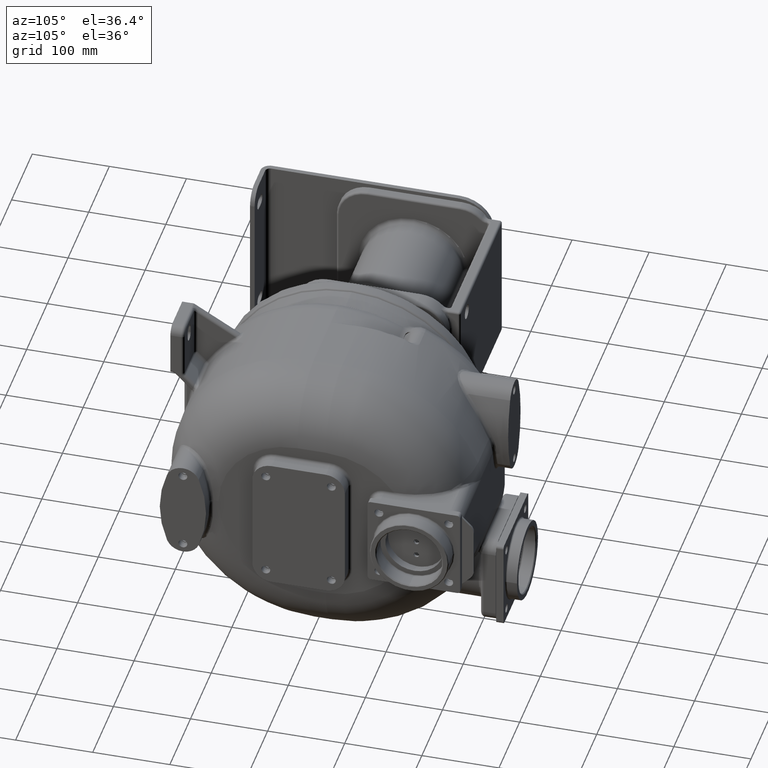
[diagram: clean part render]
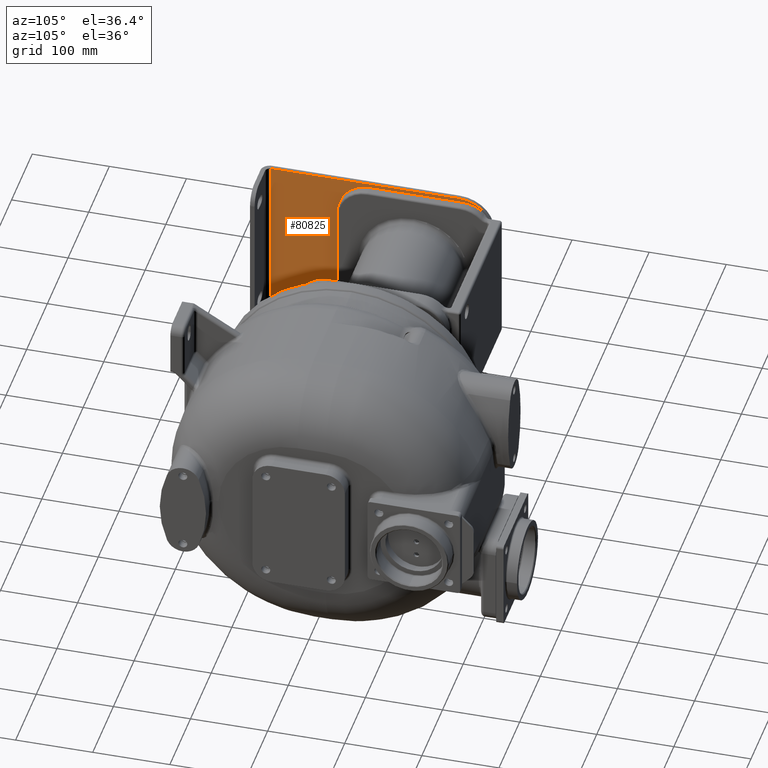
[diagram: same view with one face highlighted and labeled with its STEP entity id]
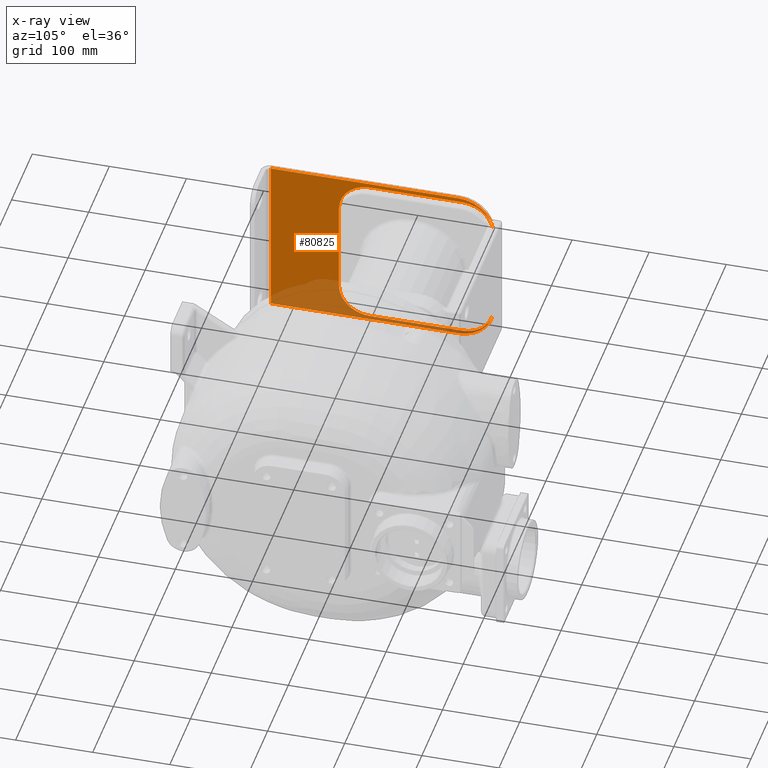
[diagram: x-ray of the same camera — body ghosted, the highlighted face saturated]
A machine part, auxiliary view. The second image highlights one B-rep face of the part: STEP entity #80825.
The next image is the same camera in x-ray: the body ghosted, the highlighted face saturated — about 22% of this face is hidden behind the body in this view.
In plain terms, the highlighted planar face has unit normal (1, 0, 0).
Its self-contained STEP definition (entity closure, byte-faithful):
#27076=CARTESIAN_POINT('',(-4.185E2,2.6E2,6.E1));
#27077=DIRECTION('',(-1.E0,0.E0,0.E0));
#27078=DIRECTION('',(0.E0,0.E0,1.E0));
#27079=AXIS2_PLACEMENT_3D('',#27076,#27077,#27078);
#27095=CARTESIAN_POINT('',(-4.185E2,2.55E2,-6.E1));
#27096=DIRECTION('',(1.E0,0.E0,0.E0));
#27097=DIRECTION('',(0.E0,0.E0,-1.E0));
#27098=AXIS2_PLACEMENT_3D('',#27095,#27096,#27097);
#27100=DIRECTION('',(0.E0,1.E0,0.E0));
#27101=VECTOR('',#27100,2.43E2);
#27102=CARTESIAN_POINT('',(-4.185E2,1.2E1,-1.05E2));
#27103=LINE('',#27102,#27101);
#27104=DIRECTION('',(0.E0,-1.E0,0.E0));
#27105=VECTOR('',#27104,2.43E2);
#27106=CARTESIAN_POINT('',(-4.185E2,2.55E2,1.05E2));
#27107=LINE('',#27106,#27105);
#27108=CARTESIAN_POINT('',(-4.185E2,2.55E2,6.E1));
#27109=DIRECTION('',(1.E0,0.E0,0.E0));
#27110=DIRECTION('',(0.E0,1.E0,2.660587799457E-12));
#27111=AXIS2_PLACEMENT_3D('',#27108,#27109,#27110);
#27113=CARTESIAN_POINT('',(-4.185E2,1.4E2,6.E1));
#27114=DIRECTION('',(-1.E0,0.E0,0.E0));
#27115=DIRECTION('',(0.E0,-1.E0,2.966515921798E-14));
#27116=AXIS2_PLACEMENT_3D('',#27113,#27114,#27115);
#27127=DIRECTION('',(0.E0,1.E0,0.E0));
#27128=VECTOR('',#27127,1.2E2);
#27129=CARTESIAN_POINT('',(-4.185E2,1.4E2,1.E2));
#27130=LINE('',#27129,#27128);
#27960=DIRECTION('',(0.E0,0.E0,1.E0));
#27961=VECTOR('',#27960,2.1E2);
#27962=CARTESIAN_POINT('',(-4.185E2,1.2E1,-1.05E2));
#27963=LINE('',#27962,#27961);
#28809=CARTESIAN_POINT('',(-4.185E2,2.6E2,-6.E1));
#28810=DIRECTION('',(-1.E0,0.E0,0.E0));
#28811=DIRECTION('',(0.E0,1.E0,-3.981170948464E-12));
#28812=AXIS2_PLACEMENT_3D('',#28809,#28810,#28811);
#28828=DIRECTION('',(0.E0,-1.E0,0.E0));
#28829=VECTOR('',#28828,1.2E2);
#28830=CARTESIAN_POINT('',(-4.185E2,2.6E2,-1.E2));
#28831=LINE('',#28830,#28829);
#28840=CARTESIAN_POINT('',(-4.185E2,1.4E2,-6.E1));
#28841=DIRECTION('',(-1.E0,0.E0,0.E0));
#28842=DIRECTION('',(0.E0,2.842170943040E-14,-1.E0));
#28843=AXIS2_PLACEMENT_3D('',#28840,#28841,#28842);
#28854=DIRECTION('',(0.E0,0.E0,1.E0));
#28855=VECTOR('',#28854,1.2E2);
#28856=CARTESIAN_POINT('',(-4.185E2,1.E2,-6.E1));
#28857=LINE('',#28856,#28855);
#42358=CARTESIAN_POINT('',(-4.185E2,2.55E2,-1.05E2));
#42360=VERTEX_POINT('',#42358);
#42380=CARTESIAN_POINT('',(-4.185E2,1.2E1,-1.05E2));
#42381=VERTEX_POINT('',#42380);
#42382=CARTESIAN_POINT('',(-4.185E2,1.2E1,1.05E2));
#42383=VERTEX_POINT('',#42382);
#42384=CARTESIAN_POINT('',(-4.185E2,2.55E2,1.05E2));
#42385=VERTEX_POINT('',#42384);
#42474=CARTESIAN_POINT('',(-4.185E2,1.E2,6.E1));
#42475=CARTESIAN_POINT('',(-4.185E2,1.4E2,1.E2));
#42476=VERTEX_POINT('',#42474);
#42477=VERTEX_POINT('',#42475);
#42478=CARTESIAN_POINT('',(-4.185E2,2.6E2,1.E2));
#42479=VERTEX_POINT('',#42478);
#42480=CARTESIAN_POINT('',(-4.185E2,3.E2,6.000000000012E1));
#42481=VERTEX_POINT('',#42480);
#42482=CARTESIAN_POINT('',(-4.185E2,3.E2,-6.000000000016E1));
#42483=CARTESIAN_POINT('',(-4.185E2,2.6E2,-1.E2));
#42484=VERTEX_POINT('',#42482);
#42485=VERTEX_POINT('',#42483);
#42486=CARTESIAN_POINT('',(-4.185E2,1.4E2,-1.E2));
#42487=VERTEX_POINT('',#42486);
#42488=CARTESIAN_POINT('',(-4.185E2,1.E2,-6.E1));
#42489=VERTEX_POINT('',#42488);
#80795=CARTESIAN_POINT('',(-4.185E2,2.E2,-3.101416018841E-14));
#80796=DIRECTION('',(1.E0,0.E0,0.E0));
#80797=DIRECTION('',(0.E0,0.E0,-1.E0));
#80798=AXIS2_PLACEMENT_3D('',#80795,#80796,#80797);
#80799=PLANE('',#80798);
#80801=ORIENTED_EDGE('',*,*,#80800,.F.);
#80803=ORIENTED_EDGE('',*,*,#80802,.F.);
#80805=ORIENTED_EDGE('',*,*,#80804,.F.);
#80807=ORIENTED_EDGE('',*,*,#80806,.F.);
#80809=ORIENTED_EDGE('',*,*,#80808,.F.);
#80811=ORIENTED_EDGE('',*,*,#80810,.F.);
#80813=ORIENTED_EDGE('',*,*,#80812,.F.);
#80815=ORIENTED_EDGE('',*,*,#80814,.T.);
#80817=ORIENTED_EDGE('',*,*,#80816,.F.);
#80819=ORIENTED_EDGE('',*,*,#80818,.F.);
#80820=ORIENTED_EDGE('',*,*,#80782,.F.);
#80822=ORIENTED_EDGE('',*,*,#80821,.F.);
#80823=EDGE_LOOP('',(#80801,#80803,#80805,#80807,#80809,#80811,#80813,#80815,
#80817,#80819,#80820,#80822));
#80824=FACE_OUTER_BOUND('',#80823,.F.);
#80825=ADVANCED_FACE('',(#80824),#80799,.T.);
#27080=CIRCLE('',#27079,4.E1);
#27099=CIRCLE('',#27098,4.5E1);
#27112=CIRCLE('',#27111,4.5E1);
#27117=CIRCLE('',#27116,4.E1);
#28813=CIRCLE('',#28812,4.E1);
#28844=CIRCLE('',#28843,4.E1);
#80782=EDGE_CURVE('',#42479,#42481,#27080,.T.);
#80800=EDGE_CURVE('',#42476,#42477,#27117,.T.);
#80802=EDGE_CURVE('',#42489,#42476,#28857,.T.);
#80804=EDGE_CURVE('',#42487,#42489,#28844,.T.);
#80806=EDGE_CURVE('',#42485,#42487,#28831,.T.);
#80808=EDGE_CURVE('',#42484,#42485,#28813,.T.);
#80810=EDGE_CURVE('',#42360,#42484,#27099,.T.);
#80812=EDGE_CURVE('',#42381,#42360,#27103,.T.);
#80814=EDGE_CURVE('',#42381,#42383,#27963,.T.);
#80816=EDGE_CURVE('',#42385,#42383,#27107,.T.);
#80818=EDGE_CURVE('',#42481,#42385,#27112,.T.);
#80821=EDGE_CURVE('',#42477,#42479,#27130,.T.);